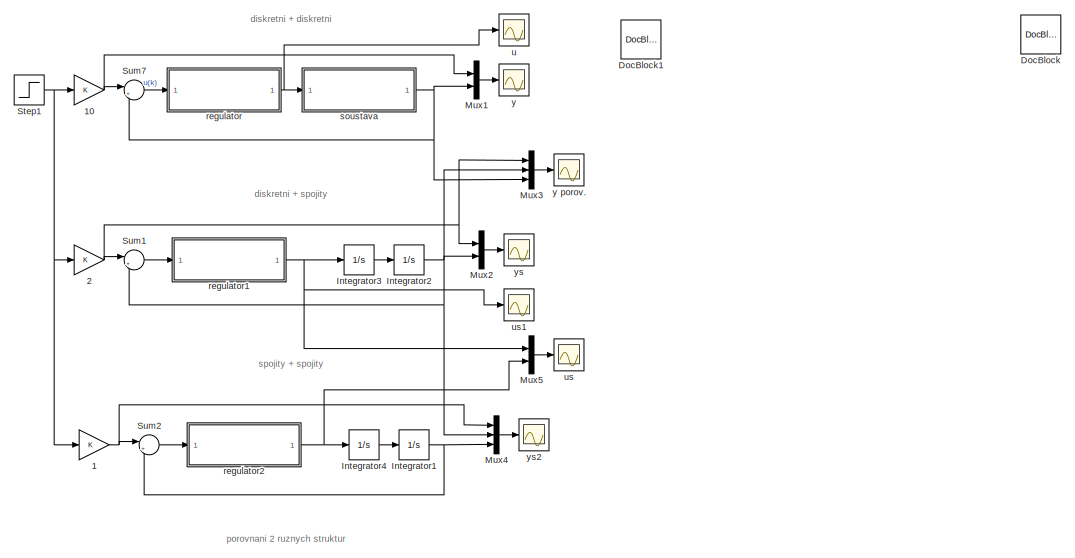
[diagram: root canvas - part 1/2, full width, top band]
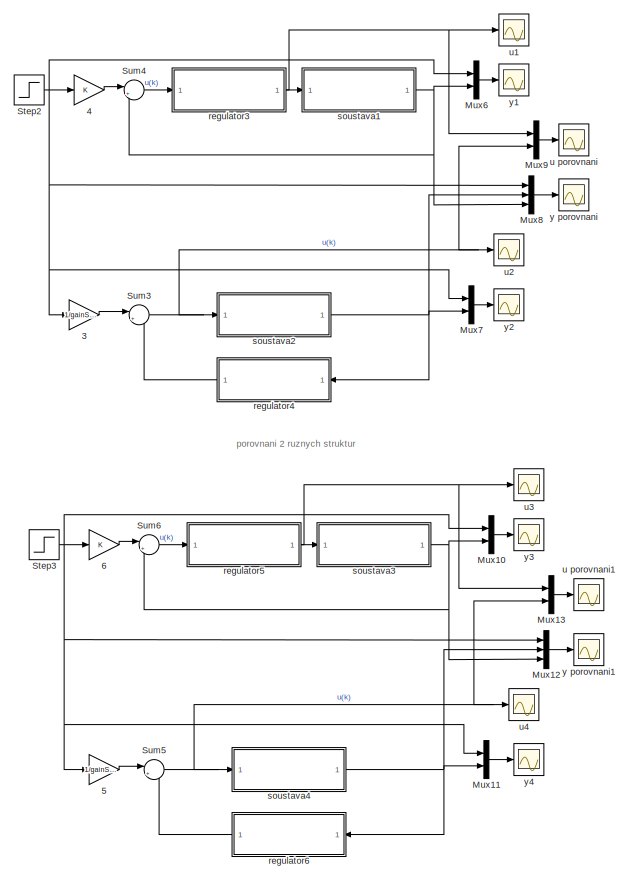
[diagram: root canvas - part 2/2, bottom left region]
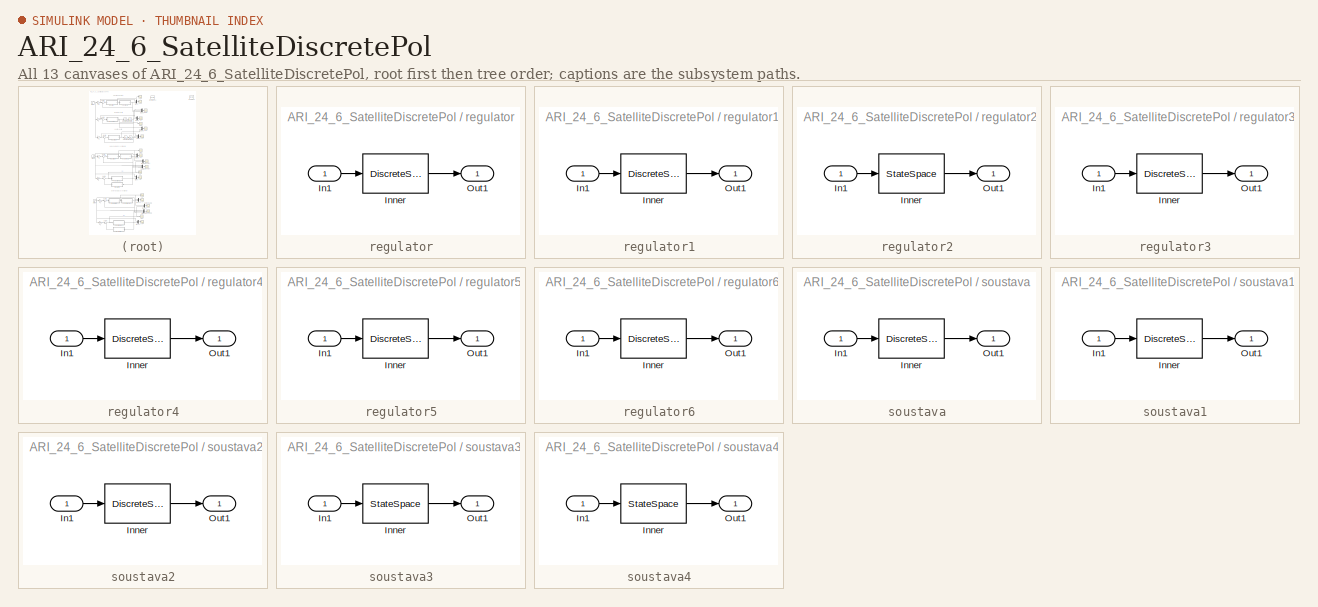
[diagram: thumbnail index - all 13 canvases of the model, root first then tree order]
MODEL ARI_24_6_SatelliteDiscretePol
KIND model
BLOCK [Gain] 1
  OutDataTypeStr = Inherit: Inherit via internal rule
  ParamDataTypeStr = Inherit: Inherit via internal rule
  SID = 1
  SaturateOnIntegerOverflow = off
BLOCK [Gain] 10
  OutDataTypeStr = Inherit: Inherit via internal rule
  ParamDataTypeStr = Inherit: Inherit via internal rule
  SID = 2
  SampleTime = h
  SaturateOnIntegerOverflow = off
BLOCK [Gain] 2
  OutDataTypeStr = Inherit: Inherit via internal rule
  ParamDataTypeStr = Inherit: Inherit via internal rule
  SID = 3
  SaturateOnIntegerOverflow = off
BLOCK [Gain] 3
  Gain = 1/gainSSZV
  OutDataTypeStr = Inherit: Inherit via internal rule
  ParamDataTypeStr = Inherit: Inherit via internal rule
  SID = 4
  SampleTime = h
  SaturateOnIntegerOverflow = off
BLOCK [Gain] 4
  OutDataTypeStr = Inherit: Inherit via internal rule
  ParamDataTypeStr = Inherit: Inherit via internal rule
  SID = 5
  SampleTime = h
  SaturateOnIntegerOverflow = off
BLOCK [Gain] 5
  Gain = 1/gainSSZV
  OutDataTypeStr = Inherit: Inherit via internal rule
  ParamDataTypeStr = Inherit: Inherit via internal rule
  SID = 6
  SampleTime = h
  SaturateOnIntegerOverflow = off
BLOCK [Gain] 6
  OutDataTypeStr = Inherit: Inherit via internal rule
  ParamDataTypeStr = Inherit: Inherit via internal rule
  SID = 7
  SampleTime = h
  SaturateOnIntegerOverflow = off
BLOCK [Reference] DocBlock  REF=simulink/Model-Wide\nUtilities/DocBlock
  DocumentType = Text
  Ports = []
  SID = 8
  SourceBlock = simulink/Model-Wide\nUtilities/DocBlock
  SourceType = DocBlock
  UserData = DataTag0
  UserDataPersistent = on
BLOCK [Reference] DocBlock1  REF=simulink/Model-Wide\nUtilities/DocBlock
  DocumentType = Text
  Ports = []
  SID = 110
  SourceBlock = simulink/Model-Wide\nUtilities/DocBlock
  SourceType = DocBlock
  UserData = DataTag1
  UserDataPersistent = on
BLOCK [Integrator] Integrator1
  Ports = [1, 1]
  SID = 9
BLOCK [Integrator] Integrator2
  Ports = [1, 1]
  SID = 10
BLOCK [Integrator] Integrator3
  Ports = [1, 1]
  SID = 11
BLOCK [Integrator] Integrator4
  Ports = [1, 1]
  SID = 12
BLOCK [Mux] Mux1
  DisplayOption = bar
  Inputs = 2
  Ports = [2, 1]
  SID = 13
BLOCK [Mux] Mux10
  DisplayOption = bar
  Inputs = 2
  Ports = [2, 1]
  SID = 14
BLOCK [Mux] Mux11
  DisplayOption = bar
  Inputs = 2
  Ports = [2, 1]
  SID = 15
BLOCK [Mux] Mux12
  DisplayOption = bar
  Inputs = 3
  Ports = [3, 1]
  SID = 16
BLOCK [Mux] Mux13
  DisplayOption = bar
  Inputs = 2
  Ports = [2, 1]
  SID = 17
BLOCK [Mux] Mux2
  DisplayOption = bar
  Inputs = 2
  Ports = [2, 1]
  SID = 18
BLOCK [Mux] Mux3
  DisplayOption = bar
  Inputs = 3
  Ports = [3, 1]
  SID = 19
BLOCK [Mux] Mux4
  DisplayOption = bar
  Inputs = 3
  Ports = [3, 1]
  SID = 20
BLOCK [Mux] Mux5
  DisplayOption = bar
  Inputs = 2
  Ports = [2, 1]
  SID = 21
BLOCK [Mux] Mux6
  DisplayOption = bar
  Inputs = 2
  Ports = [2, 1]
  SID = 22
BLOCK [Mux] Mux7
  DisplayOption = bar
  Inputs = 2
  Ports = [2, 1]
  SID = 23
BLOCK [Mux] Mux8
  DisplayOption = bar
  Inputs = 3
  Ports = [3, 1]
  SID = 24
BLOCK [Mux] Mux9
  DisplayOption = bar
  Inputs = 2
  Ports = [2, 1]
  SID = 25
BLOCK [Step] Step1
  SID = 26
  SampleTime = 0
  Time = 0
BLOCK [Step] Step2
  SID = 27
  SampleTime = 0
  Time = 0
BLOCK [Step] Step3
  SID = 28
  SampleTime = 0
  Time = 0
BLOCK [Sum] Sum1
  IconShape = round
  InputSameDT = off
  Inputs = |+-
  OutDataTypeStr = Inherit: Inherit via internal rule
  Ports = [2, 1]
  SID = 29
  SaturateOnIntegerOverflow = off
BLOCK [Sum] Sum2
  IconShape = round
  InputSameDT = off
  Inputs = |+-
  OutDataTypeStr = Inherit: Inherit via internal rule
  Ports = [2, 1]
  SID = 30
  SaturateOnIntegerOverflow = off
BLOCK [Sum] Sum3
  IconShape = round
  InputSameDT = off
  Inputs = |+-
  OutDataTypeStr = Inherit: Inherit via internal rule
  Ports = [2, 1]
  SID = 31
  SaturateOnIntegerOverflow = off
BLOCK [Sum] Sum4
  IconShape = round
  InputSameDT = off
  Inputs = |+-
  OutDataTypeStr = Inherit: Inherit via internal rule
  Ports = [2, 1]
  SID = 32
  SaturateOnIntegerOverflow = off
BLOCK [Sum] Sum5
  IconShape = round
  InputSameDT = off
  Inputs = |+-
  OutDataTypeStr = Inherit: Inherit via internal rule
  Ports = [2, 1]
  SID = 33
  SaturateOnIntegerOverflow = off
BLOCK [Sum] Sum6
  IconShape = round
  InputSameDT = off
  Inputs = |+-
  OutDataTypeStr = Inherit: Inherit via internal rule
  Ports = [2, 1]
  SID = 34
  SaturateOnIntegerOverflow = off
BLOCK [Sum] Sum7
  IconShape = round
  InputSameDT = off
  Inputs = |+-
  OutDataTypeStr = Inherit: Inherit via internal rule
  Ports = [2, 1]
  SID = 35
  SaturateOnIntegerOverflow = off
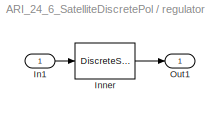
BLOCK [SubSystem] regulator
  FunctionWithSeparateData = off
  MaskCallbackString = |||
  MaskDescription = Polynomial matrix fraction description of a linear system.\n\nThis block represents a linear system defined by the polynomial matrix fraction of its transfer function.
  MaskDisplay = disp(Label);\n
  MaskEnableString = on,on,on,on
  MaskHelp = This block represents a linear system [<I>A,B,C,D</I>] defined by the polynomial matrix fraction (<I>PMF</I>) of its transfer function <I>T</I>.  \n<p>\n<b>Left Matrix Fraction</b> item of the popup menu <b>Type</b> indicates the transfer function in the form of <I>left PMF</I>:  \n<p>\n<I>T</I> = inv(<I>Q</I>) <I>P</I>.\n<p> \n<b>Right Matrix Fraction</b> item is used if the transfer function is ...<+1109ch>  <repeated x12 — deduplicated; at blocks: regulator, regulator1, regulator2, regulator3, regulator4, regulator5, regulator6, soustava, soustava1, soustava2, soustava3, soustava4>
  MaskHideContents = off
  MaskIconFrame = on
  MaskIconOpaque = on
  MaskIconRotate = none
  MaskIconUnits = autoscale
  MaskInitialization = Label = 'xxx';\n[A,B,C,D,Label,var] = polymask2(F, fvar, length(InCon));\nupdate;\n
  MaskPortRotate = default
  MaskPromptString = PMF Object:|Initial states:|Sample time (discrete time only):|Force variable:
  MaskStyleString = edit,edit,edit,popup(No change|s   (continous time)|p   (continous time)|z      (discrete time)|q      (discrete time)|d      (discrete time)|z^-1 (discrete time))
  MaskToolTipString = on,on,on,on
  MaskTunableValueString = on,on,on,on
  MaskType = PMF Block
  MaskValueString = q/p|[ ]|h|No change
  MaskVariables = F=&1;InCon=@2;SampTime=@3;fvar=@4;
  MaskVisibilityString = on,on,on,on
  MinAlgLoopOccurrences = off
  Opaque = off
  Ports = [1, 1]
  PropExecContextOutsideSubsystem = off
  RTWSystemCode = Auto
  RequestExecContextInheritance = off
  SID = 36
BLOCK [Inport] regulator/In1
  IconDisplay = Port number
  SID = 37
BLOCK [DiscreteStateSpace] regulator/Inner
  A = A
  B = B
  C = C
  D = D
  SID = 118
  SampleTime = SampTime
  X0 = InCon
BLOCK [Outport] regulator/Out1
  IconDisplay = Port number
  SID = 39
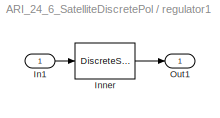
BLOCK [SubSystem] regulator1
  FunctionWithSeparateData = off
  MaskCallbackString = |||
  MaskDescription = Polynomial matrix fraction description of a linear system.\n\nThis block represents a linear system defined by the polynomial matrix fraction of its transfer function.
  MaskDisplay = disp(Label);\n
  MaskEnableString = on,on,on,on
  MaskHideContents = off
  MaskIconFrame = on
  MaskIconOpaque = on
  MaskIconRotate = none
  MaskIconUnits = autoscale
  MaskInitialization = Label = 'xxx';\n[A,B,C,D,Label,var] = polymask2(F, fvar, length(InCon));\nupdate;\n
  MaskPortRotate = default
  MaskPromptString = PMF Object:|Initial states:|Sample time (discrete time only):|Force variable:
  MaskStyleString = edit,edit,edit,popup(No change|s   (continous time)|p   (continous time)|z      (discrete time)|q      (discrete time)|d      (discrete time)|z^-1 (discrete time))
  MaskToolTipString = on,on,on,on
  MaskTunableValueString = on,on,on,on
  MaskType = PMF Block
  MaskValueString = q/p|[ ]|h|No change
  MaskVariables = F=&1;InCon=@2;SampTime=@3;fvar=@4;
  MaskVisibilityString = on,on,on,on
  MinAlgLoopOccurrences = off
  Opaque = off
  Ports = [1, 1]
  PropExecContextOutsideSubsystem = off
  RTWSystemCode = Auto
  RequestExecContextInheritance = off
  SID = 40
BLOCK [Inport] regulator1/In1
  IconDisplay = Port number
  SID = 41
BLOCK [DiscreteStateSpace] regulator1/Inner
  A = A
  B = B
  C = C
  D = D
  SID = 119
  SampleTime = SampTime
  X0 = InCon
BLOCK [Outport] regulator1/Out1
  IconDisplay = Port number
  SID = 43
BLOCK [SubSystem] regulator2
  FunctionWithSeparateData = off
  MaskCallbackString = |||
  MaskDescription = Polynomial matrix fraction description of a linear system.\n\nThis block represents a linear system defined by the polynomial matrix fraction of its transfer function.
  MaskDisplay = disp(Label);\n
  MaskEnableString = on,on,on,on
  MaskHideContents = off
  MaskIconFrame = on
  MaskIconOpaque = on
  MaskIconRotate = none
  MaskIconUnits = autoscale
  MaskInitialization = Label = 'xxx';\n[A,B,C,D,Label,var] = polymask2(F, fvar, length(InCon));\nupdate;\n
  MaskPortRotate = default
  MaskPromptString = PMF Object:|Initial states:|Sample time (discrete time only):|Force variable:
  MaskStyleString = edit,edit,edit,popup(No change|s   (continous time)|p   (continous time)|z      (discrete time)|q      (discrete time)|d      (discrete time)|z^-1 (discrete time))
  MaskToolTipString = on,on,on,on
  MaskTunableValueString = on,on,on,on
  MaskType = PMF Block
  MaskValueString = qs/ps|[ ]|-1|No change
  MaskVariables = F=&1;InCon=@2;SampTime=@3;fvar=@4;
  MaskVisibilityString = on,on,on,on
  MinAlgLoopOccurrences = off
  Opaque = off
  Ports = [1, 1]
  PropExecContextOutsideSubsystem = off
  RTWSystemCode = Auto
  RequestExecContextInheritance = off
  SID = 44
BLOCK [Inport] regulator2/In1
  IconDisplay = Port number
  SID = 45
BLOCK [StateSpace] regulator2/Inner
  A = A
  B = B
  C = C
  D = D
  SID = 46
  X0 = InCon
BLOCK [Outport] regulator2/Out1
  IconDisplay = Port number
  SID = 47
BLOCK [SubSystem] regulator3
  FunctionWithSeparateData = off
  MaskCallbackString = |||
  MaskDescription = Polynomial matrix fraction description of a linear system.\n\nThis block represents a linear system defined by the polynomial matrix fraction of its transfer function.
  MaskDisplay = disp(Label);\n
  MaskEnableString = on,on,on,on
  MaskHideContents = off
  MaskIconFrame = on
  MaskIconOpaque = on
  MaskIconRotate = none
  MaskIconUnits = autoscale
  MaskInitialization = Label = 'xxx';\n[A,B,C,D,Label,var] = polymask2(F, fvar, length(InCon));\nupdate;\n
  MaskPortRotate = default
  MaskPromptString = PMF Object:|Initial states:|Sample time (discrete time only):|Force variable:
  MaskStyleString = edit,edit,edit,popup(No change|s   (continous time)|p   (continous time)|z      (discrete time)|q      (discrete time)|d      (discrete time)|z^-1 (discrete time))
  MaskToolTipString = on,on,on,on
  MaskTunableValueString = on,on,on,on
  MaskType = PMF Block
  MaskValueString = q/p|[ ]|h|No change
  MaskVariables = F=&1;InCon=@2;SampTime=@3;fvar=@4;
  MaskVisibilityString = on,on,on,on
  MinAlgLoopOccurrences = off
  Opaque = off
  Ports = [1, 1]
  PropExecContextOutsideSubsystem = off
  RTWSystemCode = Auto
  RequestExecContextInheritance = off
  SID = 48
BLOCK [Inport] regulator3/In1
  IconDisplay = Port number
  SID = 49
BLOCK [DiscreteStateSpace] regulator3/Inner
  A = A
  B = B
  C = C
  D = D
  SID = 120
  SampleTime = SampTime
  X0 = InCon
BLOCK [Outport] regulator3/Out1
  IconDisplay = Port number
  SID = 51
BLOCK [SubSystem] regulator4
  FunctionWithSeparateData = off
  MaskCallbackString = |||
  MaskDescription = Polynomial matrix fraction description of a linear system.\n\nThis block represents a linear system defined by the polynomial matrix fraction of its transfer function.
  MaskDisplay = disp(Label);\n
  MaskEnableString = on,on,on,on
  MaskHideContents = off
  MaskIconFrame = on
  MaskIconOpaque = on
  MaskIconRotate = none
  MaskIconUnits = autoscale
  MaskInitialization = Label = 'xxx';\n[A,B,C,D,Label,var] = polymask2(F, fvar, length(InCon));\nupdate;\n
  MaskPortRotate = default
  MaskPromptString = PMF Object:|Initial states:|Sample time (discrete time only):|Force variable:
  MaskStyleString = edit,edit,edit,popup(No change|s   (continous time)|p   (continous time)|z      (discrete time)|q      (discrete time)|d      (discrete time)|z^-1 (discrete time))
  MaskToolTipString = on,on,on,on
  MaskTunableValueString = on,on,on,on
  MaskType = PMF Block
  MaskValueString = q/p|[ ]|h|No change
  MaskVariables = F=&1;InCon=@2;SampTime=@3;fvar=@4;
  MaskVisibilityString = on,on,on,on
  MinAlgLoopOccurrences = off
  Opaque = off
  Ports = [1, 1]
  PropExecContextOutsideSubsystem = off
  RTWSystemCode = Auto
  RequestExecContextInheritance = off
  SID = 52
BLOCK [Inport] regulator4/In1
  IconDisplay = Port number
  SID = 53
BLOCK [DiscreteStateSpace] regulator4/Inner
  A = A
  B = B
  C = C
  D = D
  SID = 121
  SampleTime = SampTime
  X0 = InCon
BLOCK [Outport] regulator4/Out1
  IconDisplay = Port number
  SID = 55
BLOCK [SubSystem] regulator5
  FunctionWithSeparateData = off
  MaskCallbackString = |||
  MaskDescription = Polynomial matrix fraction description of a linear system.\n\nThis block represents a linear system defined by the polynomial matrix fraction of its transfer function.
  MaskDisplay = disp(Label);\n
  MaskEnableString = on,on,on,on
  MaskHideContents = off
  MaskIconFrame = on
  MaskIconOpaque = on
  MaskIconRotate = none
  MaskIconUnits = autoscale
  MaskInitialization = Label = 'xxx';\n[A,B,C,D,Label,var] = polymask2(F, fvar, length(InCon));\nupdate;\n
  MaskPortRotate = default
  MaskPromptString = PMF Object:|Initial states:|Sample time (discrete time only):|Force variable:
  MaskStyleString = edit,edit,edit,popup(No change|s   (continous time)|p   (continous time)|z      (discrete time)|q      (discrete time)|d      (discrete time)|z^-1 (discrete time))
  MaskToolTipString = on,on,on,on
  MaskTunableValueString = on,on,on,on
  MaskType = PMF Block
  MaskValueString = q/p|[ ]|h|No change
  MaskVariables = F=&1;InCon=@2;SampTime=@3;fvar=@4;
  MaskVisibilityString = on,on,on,on
  MinAlgLoopOccurrences = off
  Opaque = off
  Ports = [1, 1]
  PropExecContextOutsideSubsystem = off
  RTWSystemCode = Auto
  RequestExecContextInheritance = off
  SID = 56
BLOCK [Inport] regulator5/In1
  IconDisplay = Port number
  SID = 57
BLOCK [DiscreteStateSpace] regulator5/Inner
  A = A
  B = B
  C = C
  D = D
  SID = 122
  SampleTime = SampTime
  X0 = InCon
BLOCK [Outport] regulator5/Out1
  IconDisplay = Port number
  SID = 59
BLOCK [SubSystem] regulator6
  FunctionWithSeparateData = off
  MaskCallbackString = |||
  MaskDescription = Polynomial matrix fraction description of a linear system.\n\nThis block represents a linear system defined by the polynomial matrix fraction of its transfer function.
  MaskDisplay = disp(Label);\n
  MaskEnableString = on,on,on,on
  MaskHideContents = off
  MaskIconFrame = on
  MaskIconOpaque = on
  MaskIconRotate = none
  MaskIconUnits = autoscale
  MaskInitialization = Label = 'xxx';\n[A,B,C,D,Label,var] = polymask2(F, fvar, length(InCon));\nupdate;\n
  MaskPortRotate = default
  MaskPromptString = PMF Object:|Initial states:|Sample time (discrete time only):|Force variable:
  MaskStyleString = edit,edit,edit,popup(No change|s   (continous time)|p   (continous time)|z      (discrete time)|q      (discrete time)|d      (discrete time)|z^-1 (discrete time))
  MaskToolTipString = on,on,on,on
  MaskTunableValueString = on,on,on,on
  MaskType = PMF Block
  MaskValueString = q/p|[ ]|h|No change
  MaskVariables = F=&1;InCon=@2;SampTime=@3;fvar=@4;
  MaskVisibilityString = on,on,on,on
  MinAlgLoopOccurrences = off
  Opaque = off
  Ports = [1, 1]
  PropExecContextOutsideSubsystem = off
  RTWSystemCode = Auto
  RequestExecContextInheritance = off
  SID = 60
BLOCK [Inport] regulator6/In1
  IconDisplay = Port number
  SID = 61
BLOCK [DiscreteStateSpace] regulator6/Inner
  A = A
  B = B
  C = C
  D = D
  SID = 123
  SampleTime = SampTime
  X0 = InCon
BLOCK [Outport] regulator6/Out1
  IconDisplay = Port number
  SID = 63
BLOCK [SubSystem] soustava
  FunctionWithSeparateData = off
  MaskCallbackString = |||
  MaskDescription = Polynomial matrix fraction description of a linear system.\n\nThis block represents a linear system defined by the polynomial matrix fraction of its transfer function.
  MaskDisplay = disp(Label);\n
  MaskEnableString = on,on,on,on
  MaskHideContents = off
  MaskIconFrame = on
  MaskIconOpaque = on
  MaskIconRotate = none
  MaskIconUnits = autoscale
  MaskInitialization = Label = 'xxx';\n[A,B,C,D,Label,var] = polymask2(F, fvar, length(InCon));\nupdate;\n
  MaskPortRotate = default
  MaskPromptString = PMF Object:|Initial states:|Sample time (discrete time only):|Force variable:
  MaskStyleString = edit,edit,edit,popup(No change|s   (continous time)|p   (continous time)|z      (discrete time)|q      (discrete time)|d      (discrete time)|z^-1 (discrete time))
  MaskToolTipString = on,on,on,on
  MaskTunableValueString = on,on,on,on
  MaskType = PMF Block
  MaskValueString = b/a|[ ]|h|No change
  MaskVariables = F=&1;InCon=@2;SampTime=@3;fvar=@4;
  MaskVisibilityString = on,on,on,on
  MinAlgLoopOccurrences = off
  Opaque = off
  Ports = [1, 1]
  PropExecContextOutsideSubsystem = off
  RTWSystemCode = Auto
  RequestExecContextInheritance = off
  SID = 64
BLOCK [Inport] soustava/In1
  IconDisplay = Port number
  SID = 65
BLOCK [DiscreteStateSpace] soustava/Inner
  A = A
  B = B
  C = C
  D = D
  SID = 111
  SampleTime = SampTime
  X0 = InCon
BLOCK [Outport] soustava/Out1
  IconDisplay = Port number
  SID = 67
BLOCK [SubSystem] soustava1
  FunctionWithSeparateData = off
  MaskCallbackString = |||
  MaskDescription = Polynomial matrix fraction description of a linear system.\n\nThis block represents a linear system defined by the polynomial matrix fraction of its transfer function.
  MaskDisplay = disp(Label);\n
  MaskEnableString = on,on,on,on
  MaskHideContents = off
  MaskIconFrame = on
  MaskIconOpaque = on
  MaskIconRotate = none
  MaskIconUnits = autoscale
  MaskInitialization = Label = 'xxx';\n[A,B,C,D,Label,var] = polymask2(F, fvar, length(InCon));\nupdate;\n
  MaskPortRotate = default
  MaskPromptString = PMF Object:|Initial states:|Sample time (discrete time only):|Force variable:
  MaskStyleString = edit,edit,edit,popup(No change|s   (continous time)|p   (continous time)|z      (discrete time)|q      (discrete time)|d      (discrete time)|z^-1 (discrete time))
  MaskToolTipString = on,on,on,on
  MaskTunableValueString = on,on,on,on
  MaskType = PMF Block
  MaskValueString = b/a|[ ]|h|No change
  MaskVariables = F=&1;InCon=@2;SampTime=@3;fvar=@4;
  MaskVisibilityString = on,on,on,on
  MinAlgLoopOccurrences = off
  Opaque = off
  Ports = [1, 1]
  PropExecContextOutsideSubsystem = off
  RTWSystemCode = Auto
  RequestExecContextInheritance = off
  SID = 68
BLOCK [Inport] soustava1/In1
  IconDisplay = Port number
  SID = 69
BLOCK [DiscreteStateSpace] soustava1/Inner
  A = A
  B = B
  C = C
  D = D
  SID = 70
  SampleTime = SampTime
  X0 = InCon
BLOCK [Outport] soustava1/Out1
  IconDisplay = Port number
  SID = 71
BLOCK [SubSystem] soustava2
  FunctionWithSeparateData = off
  MaskCallbackString = |||
  MaskDescription = Polynomial matrix fraction description of a linear system.\n\nThis block represents a linear system defined by the polynomial matrix fraction of its transfer function.
  MaskDisplay = disp(Label);\n
  MaskEnableString = on,on,on,on
  MaskHideContents = off
  MaskIconFrame = on
  MaskIconOpaque = on
  MaskIconRotate = none
  MaskIconUnits = autoscale
  MaskInitialization = Label = 'xxx';\n[A,B,C,D,Label,var] = polymask2(F, fvar, length(InCon));\nupdate;\n
  MaskPortRotate = default
  MaskPromptString = PMF Object:|Initial states:|Sample time (discrete time only):|Force variable:
  MaskStyleString = edit,edit,edit,popup(No change|s   (continous time)|p   (continous time)|z      (discrete time)|q      (discrete time)|d      (discrete time)|z^-1 (discrete time))
  MaskToolTipString = on,on,on,on
  MaskTunableValueString = on,on,on,on
  MaskType = PMF Block
  MaskValueString = b/a|[ ]|h|No change
  MaskVariables = F=&1;InCon=@2;SampTime=@3;fvar=@4;
  MaskVisibilityString = on,on,on,on
  MinAlgLoopOccurrences = off
  Opaque = off
  Ports = [1, 1]
  PropExecContextOutsideSubsystem = off
  RTWSystemCode = Auto
  RequestExecContextInheritance = off
  SID = 72
BLOCK [Inport] soustava2/In1
  IconDisplay = Port number
  SID = 73
BLOCK [DiscreteStateSpace] soustava2/Inner
  A = A
  B = B
  C = C
  D = D
  SID = 74
  SampleTime = SampTime
  X0 = InCon
BLOCK [Outport] soustava2/Out1
  IconDisplay = Port number
  SID = 75
BLOCK [SubSystem] soustava3
  FunctionWithSeparateData = off
  MaskCallbackString = |||
  MaskDescription = Polynomial matrix fraction description of a linear system.\n\nThis block represents a linear system defined by the polynomial matrix fraction of its transfer function.
  MaskDisplay = disp(Label);\n
  MaskEnableString = on,on,on,on
  MaskHideContents = off
  MaskIconFrame = on
  MaskIconOpaque = on
  MaskIconRotate = none
  MaskIconUnits = autoscale
  MaskInitialization = Label = 'xxx';\n[A,B,C,D,Label,var] = polymask2(F, fvar, length(InCon));\nupdate;\n
  MaskPortRotate = default
  MaskPromptString = PMF Object:|Initial states:|Sample time (discrete time only):|Force variable:
  MaskStyleString = edit,edit,edit,popup(No change|s   (continous time)|p   (continous time)|z      (discrete time)|q      (discrete time)|d      (discrete time)|z^-1 (discrete time))
  MaskToolTipString = on,on,on,on
  MaskTunableValueString = on,on,on,on
  MaskType = PMF Block
  MaskValueString = bs/as|[ ]|-1|No change
  MaskVariables = F=&1;InCon=@2;SampTime=@3;fvar=@4;
  MaskVisibilityString = on,on,on,on
  MinAlgLoopOccurrences = off
  Opaque = off
  Ports = [1, 1]
  PropExecContextOutsideSubsystem = off
  RTWSystemCode = Auto
  RequestExecContextInheritance = off
  SID = 76
BLOCK [Inport] soustava3/In1
  IconDisplay = Port number
  SID = 77
BLOCK [StateSpace] soustava3/Inner
  A = A
  B = B
  C = C
  D = D
  SID = 78
  X0 = InCon
BLOCK [Outport] soustava3/Out1
  IconDisplay = Port number
  SID = 79
BLOCK [SubSystem] soustava4
  FunctionWithSeparateData = off
  MaskCallbackString = |||
  MaskDescription = Polynomial matrix fraction description of a linear system.\n\nThis block represents a linear system defined by the polynomial matrix fraction of its transfer function.
  MaskDisplay = disp(Label);\n
  MaskEnableString = on,on,on,on
  MaskHideContents = off
  MaskIconFrame = on
  MaskIconOpaque = on
  MaskIconRotate = none
  MaskIconUnits = autoscale
  MaskInitialization = Label = 'xxx';\n[A,B,C,D,Label,var] = polymask2(F, fvar, length(InCon));\nupdate;\n
  MaskPortRotate = default
  MaskPromptString = PMF Object:|Initial states:|Sample time (discrete time only):|Force variable:
  MaskStyleString = edit,edit,edit,popup(No change|s   (continous time)|p   (continous time)|z      (discrete time)|q      (discrete time)|d      (discrete time)|z^-1 (discrete time))
  MaskToolTipString = on,on,on,on
  MaskTunableValueString = on,on,on,on
  MaskType = PMF Block
  MaskValueString = bs/as|[ ]|-1|No change
  MaskVariables = F=&1;InCon=@2;SampTime=@3;fvar=@4;
  MaskVisibilityString = on,on,on,on
  MinAlgLoopOccurrences = off
  Opaque = off
  Ports = [1, 1]
  PropExecContextOutsideSubsystem = off
  RTWSystemCode = Auto
  RequestExecContextInheritance = off
  SID = 80
BLOCK [Inport] soustava4/In1
  IconDisplay = Port number
  SID = 81
BLOCK [StateSpace] soustava4/Inner
  A = A
  B = B
  C = C
  D = D
  SID = 82
  X0 = InCon
BLOCK [Outport] soustava4/Out1
  IconDisplay = Port number
  SID = 83
BLOCK [Scope] u
  DataFormat = StructureWithTime
  Floating = off
  NumInputPorts = 1
  Ports = [1]
  SID = 84
  SampleTime = 0
  SaveName = ScopeData4
BLOCK [Scope] u porovnani
  DataFormat = StructureWithTime
  Floating = off
  NumInputPorts = 1
  Ports = [1]
  SID = 85
  SampleTime = 0
  SaveName = ScopeData6
BLOCK [Scope] u porovnani1
  DataFormat = StructureWithTime
  Floating = off
  NumInputPorts = 1
  Ports = [1]
  SID = 86
  SampleTime = 0
  SaveName = ScopeData13
BLOCK [Scope] u1
  DataFormat = StructureWithTime
  Floating = off
  NumInputPorts = 1
  Ports = [1]
  SID = 87
  SampleTime = 0
  SaveName = ScopeData7
BLOCK [Scope] u2
  DataFormat = StructureWithTime
  Floating = off
  NumInputPorts = 1
  Ports = [1]
  SID = 88
  SampleTime = 0
  SaveName = ScopeData8
BLOCK [Scope] u3
  DataFormat = StructureWithTime
  Floating = off
  NumInputPorts = 1
  Ports = [1]
  SID = 89
  SampleTime = 0
  SaveName = ScopeData14
BLOCK [Scope] u4
  DataFormat = StructureWithTime
  Floating = off
  NumInputPorts = 1
  Ports = [1]
  SID = 90
  SampleTime = 0
  SaveName = ScopeData15
BLOCK [Scope] us
  DataFormat = StructureWithTime
  Floating = off
  NumInputPorts = 1
  Ports = [1]
  SID = 91
  SampleTime = 0
  SaveName = ScopeData5
BLOCK [Scope] us1
  DataFormat = StructureWithTime
  Floating = off
  NumInputPorts = 1
  Ports = [1]
  SID = 92
  SampleTime = 0
  SaveName = ScopeData12
BLOCK [Scope] y
  DataFormat = StructureWithTime
  Floating = off
  NumInputPorts = 1
  Ports = [1]
  SID = 93
  SampleTime = 0
  SaveName = ScopeData1
BLOCK [Scope] y porov.
  DataFormat = StructureWithTime
  Floating = off
  NumInputPorts = 1
  Ports = [1]
  SID = 94
  SampleTime = 0
  SaveName = ScopeData2
BLOCK [Scope] y porovnani
  DataFormat = StructureWithTime
  Floating = off
  NumInputPorts = 1
  Ports = [1]
  SID = 95
  SampleTime = 0
  SaveName = ScopeData9
BLOCK [Scope] y porovnani1
  DataFormat = StructureWithTime
  Floating = off
  NumInputPorts = 1
  Ports = [1]
  SID = 96
  SampleTime = 0
  SaveName = ScopeData16
BLOCK [Scope] y1
  DataFormat = StructureWithTime
  Floating = off
  NumInputPorts = 1
  Ports = [1]
  SID = 97
  SampleTime = 0
  SaveName = ScopeData10
BLOCK [Scope] y2
  DataFormat = StructureWithTime
  Floating = off
  NumInputPorts = 1
  Ports = [1]
  SID = 98
  SampleTime = 0
  SaveName = ScopeData11
BLOCK [Scope] y3
  DataFormat = StructureWithTime
  Floating = off
  NumInputPorts = 1
  Ports = [1]
  SID = 99
  SampleTime = 0
  SaveName = ScopeData17
BLOCK [Scope] y4
  DataFormat = StructureWithTime
  Floating = off
  NumInputPorts = 1
  Ports = [1]
  SID = 100
  SampleTime = 0
  SaveName = ScopeData18
BLOCK [Scope] ys
  DataFormat = StructureWithTime
  Floating = off
  NumInputPorts = 1
  Ports = [1]
  SID = 101
  SampleTime = 0
BLOCK [Scope] ys2
  DataFormat = StructureWithTime
  Floating = off
  NumInputPorts = 1
  Ports = [1]
  SID = 102
  SampleTime = 0
  SaveName = ScopeData3
ANNOTATION (root): diskretni + diskretni
ANNOTATION (root): diskretni + spojity
ANNOTATION (root): porovnani 2 ruznych struktur
ANNOTATION (root): spojity + spojity
NET 10:1 -> Mux1:1, Sum7:1
NET 1:1 -> Mux4:1, Sum2:1
NET 2:1 -> Mux2:1, Mux3:1, Sum1:1
LINE 3:1 -> Sum3:1
LINE 4:1 -> Sum4:1
LINE 5:1 -> Sum5:1
LINE 6:1 -> Sum6:1
NET Integrator1:1 -> Mux4:3, Sum2:2
NET Integrator2:1 -> Mux2:2, Mux3:2, Mux4:2, Sum1:2
LINE Integrator3:1 -> Integrator2:1
LINE Integrator4:1 -> Integrator1:1
LINE Mux10:1 -> y3:1
LINE Mux11:1 -> y4:1
LINE Mux12:1 -> y porovnani1:1
LINE Mux13:1 -> u porovnani1:1
LINE Mux1:1 -> y:1
LINE Mux2:1 -> ys:1
LINE Mux3:1 -> y porov.:1
LINE Mux4:1 -> ys2:1
LINE Mux5:1 -> us:1
LINE Mux6:1 -> y1:1
LINE Mux7:1 -> y2:1
LINE Mux8:1 -> y porovnani:1
LINE Mux9:1 -> u porovnani:1
NET Step1:1 -> 10:1, 1:1, 2:1
NET Step2:1 -> 3:1, 4:1, Mux6:1, Mux7:1, Mux8:1
NET Step3:1 -> 5:1, 6:1, Mux10:1, Mux11:1, Mux12:1
LINE Sum1:1 -> regulator1:1
LINE Sum2:1 -> regulator2:1
NET Sum3:1 -> Mux9:2, soustava2:1, u2:1
LINE Sum4:1 -> regulator3:1
NET Sum5:1 -> Mux13:2, soustava4:1, u4:1
LINE Sum6:1 -> regulator5:1
LINE Sum7:1 -> regulator:1
LINE regulator/In1:1 -> regulator/Inner:1
LINE regulator/Inner:1 -> regulator/Out1:1
LINE regulator1/In1:1 -> regulator1/Inner:1
LINE regulator1/Inner:1 -> regulator1/Out1:1
NET regulator1:1 -> Integrator3:1, Mux5:1, us1:1
LINE regulator2/In1:1 -> regulator2/Inner:1
LINE regulator2/Inner:1 -> regulator2/Out1:1
NET regulator2:1 -> Integrator4:1, Mux5:2
LINE regulator3/In1:1 -> regulator3/Inner:1
LINE regulator3/Inner:1 -> regulator3/Out1:1
NET regulator3:1 -> Mux9:1, soustava1:1, u1:1
LINE regulator4/In1:1 -> regulator4/Inner:1
LINE regulator4/Inner:1 -> regulator4/Out1:1
LINE regulator4:1 -> Sum3:2
LINE regulator5/In1:1 -> regulator5/Inner:1
LINE regulator5/Inner:1 -> regulator5/Out1:1
NET regulator5:1 -> Mux13:1, soustava3:1, u3:1
LINE regulator6/In1:1 -> regulator6/Inner:1
LINE regulator6/Inner:1 -> regulator6/Out1:1
LINE regulator6:1 -> Sum5:2
NET regulator:1 -> soustava:1, u:1
LINE soustava/In1:1 -> soustava/Inner:1
LINE soustava/Inner:1 -> soustava/Out1:1
LINE soustava1/In1:1 -> soustava1/Inner:1
LINE soustava1/Inner:1 -> soustava1/Out1:1
NET soustava1:1 -> Mux6:2, Mux8:3, Sum4:2
LINE soustava2/In1:1 -> soustava2/Inner:1
LINE soustava2/Inner:1 -> soustava2/Out1:1
NET soustava2:1 -> Mux7:2, Mux8:2, regulator4:1
LINE soustava3/In1:1 -> soustava3/Inner:1
LINE soustava3/Inner:1 -> soustava3/Out1:1
NET soustava3:1 -> Mux10:2, Mux12:3, Sum6:2
LINE soustava4/In1:1 -> soustava4/Inner:1
LINE soustava4/Inner:1 -> soustava4/Out1:1
NET soustava4:1 -> Mux11:2, Mux12:2, regulator6:1
NET soustava:1 -> Mux1:2, Mux3:3, Sum7:2
note: NET lines group one-source signal fan-out (src -> all destinations, sorted); 1:1 wires keep LINE
